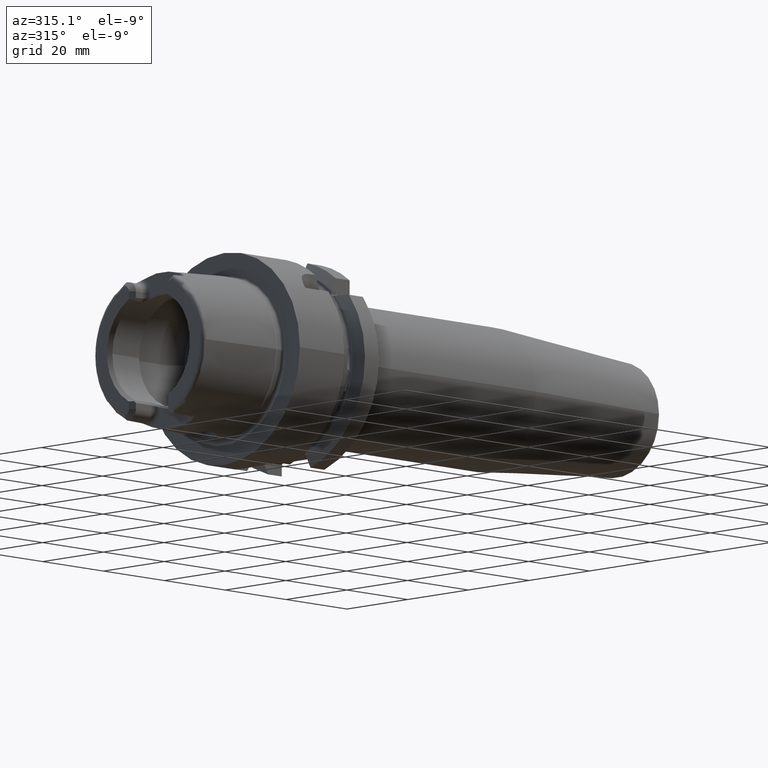
[diagram: clean part render]
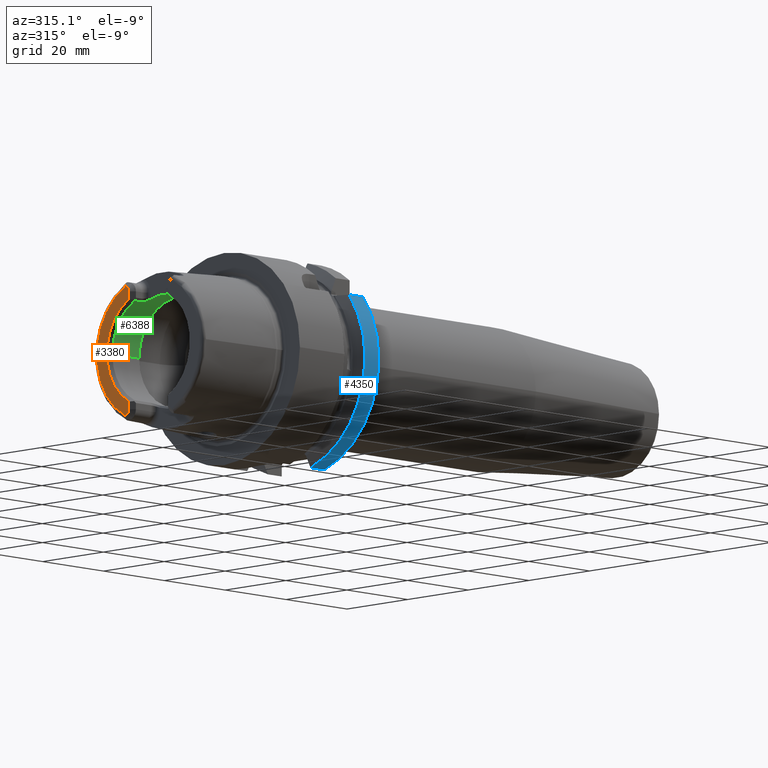
[diagram: same view with three faces highlighted in distinct colors, each labeled with its STEP entity id]
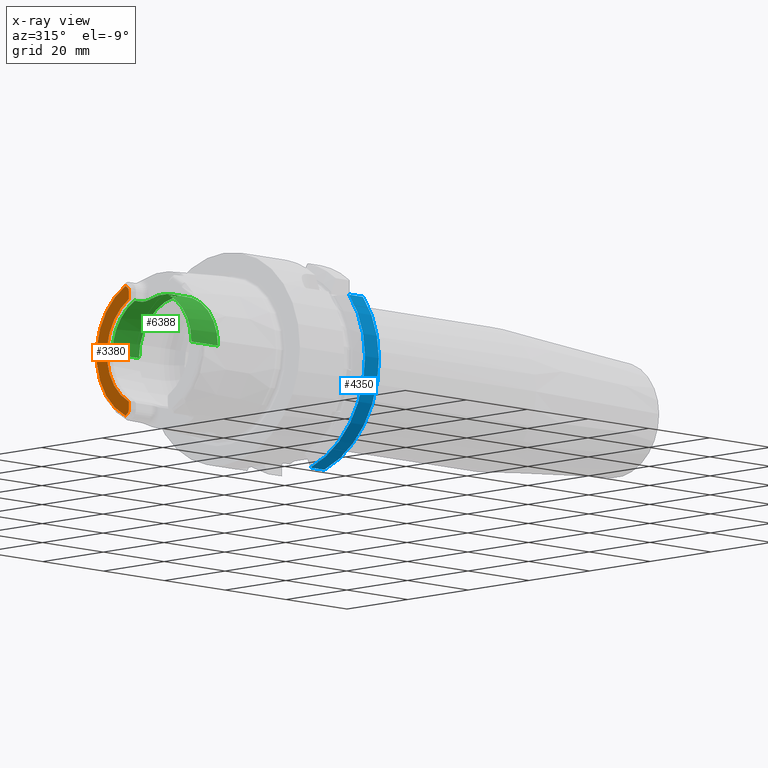
[diagram: x-ray of the same camera — body ghosted, the three highlighted faces saturated]
A machine part, auxiliary view with three faces highlighted in distinct colors.
The next image is the same camera in x-ray (body ghosted, the three faces saturated) — at least one of them is partly hidden behind the body in this view.
Their STEP definitions:

[orange] entity #3380 — the highlighted planar face has unit normal (1, 0, 0).
#86=DIRECTION('',(0.E0,0.E0,1.E0));
#87=VECTOR('',#86,1.794408024424E0);
#88=CARTESIAN_POINT('',(-2.49E1,6.42E0,-1.388E1));
#89=LINE('',#88,#87);
#90=CARTESIAN_POINT('',(-2.49E1,7.65E0,-1.388E1));
#91=DIRECTION('',(1.E0,0.E0,0.E0));
#92=DIRECTION('',(0.E0,-1.E0,0.E0));
#93=AXIS2_PLACEMENT_3D('',#90,#91,#92);
#95=DIRECTION('',(0.E0,-8.262563907023E-1,5.632942187025E-1));
#96=VECTOR('',#95,7.112027059277E-1);
#97=CARTESIAN_POINT('',(-2.49E1,7.544783891853E0,-1.529691173314E1));
#98=LINE('',#97,#96);
#99=DIRECTION('',(0.E0,-8.262563907023E-1,-5.632942187025E-1));
#100=VECTOR('',#99,7.112027059277E-1);
#101=CARTESIAN_POINT('',(-2.49E1,7.544783891853E0,1.529691173314E1));
#102=LINE('',#101,#100);
#103=CARTESIAN_POINT('',(-2.49E1,7.65E0,1.388E1));
#104=DIRECTION('',(-1.E0,0.E0,0.E0));
#105=DIRECTION('',(0.E0,-1.E0,-1.444192552358E-14));
#106=AXIS2_PLACEMENT_3D('',#103,#104,#105);
#108=DIRECTION('',(0.E0,0.E0,1.E0));
#109=VECTOR('',#108,1.794408024424E0);
#110=CARTESIAN_POINT('',(-2.49E1,6.42E0,1.208559197558E1));
#111=LINE('',#110,#109);
#143=CARTESIAN_POINT('',(-2.49E1,0.E0,0.E0));
#144=DIRECTION('',(1.E0,0.E0,0.E0));
#145=DIRECTION('',(0.E0,4.691283988580E-1,-8.831299708338E-1));
#146=AXIS2_PLACEMENT_3D('',#143,#144,#145);
#344=CARTESIAN_POINT('',(-2.49E1,0.E0,0.E0));
#345=DIRECTION('',(-1.E0,0.E0,0.E0));
#346=DIRECTION('',(0.E0,4.423444250631E-1,8.968452539962E-1));
#347=AXIS2_PLACEMENT_3D('',#344,#345,#346);
#2896=CARTESIAN_POINT('',(-2.49E1,6.42E0,1.208559197558E1));
#2897=CARTESIAN_POINT('',(-2.49E1,6.42E0,1.388E1));
#2898=VERTEX_POINT('',#2896);
#2899=VERTEX_POINT('',#2897);
#2900=CARTESIAN_POINT('',(-2.49E1,6.957148110996E0,1.489629536056E1));
#2901=VERTEX_POINT('',#2900);
#2902=CARTESIAN_POINT('',(-2.49E1,7.544783891853E0,1.529691173314E1));
#2903=VERTEX_POINT('',#2902);
#2928=CARTESIAN_POINT('',(-2.49E1,6.42E0,-1.388E1));
#2929=CARTESIAN_POINT('',(-2.49E1,6.42E0,-1.208559197558E1));
#2930=VERTEX_POINT('',#2928);
#2931=VERTEX_POINT('',#2929);
#2932=CARTESIAN_POINT('',(-2.49E1,6.957148110996E0,-1.489629536056E1));
#2933=VERTEX_POINT('',#2932);
#2934=CARTESIAN_POINT('',(-2.49E1,7.544783891853E0,-1.529691173314E1));
#2935=VERTEX_POINT('',#2934);
#3357=CARTESIAN_POINT('',(-2.49E1,0.E0,0.E0));
#3358=DIRECTION('',(1.E0,0.E0,0.E0));
#3359=DIRECTION('',(0.E0,-1.E0,0.E0));
#3360=AXIS2_PLACEMENT_3D('',#3357,#3358,#3359);
#3361=PLANE('',#3360);
#3363=ORIENTED_EDGE('',*,*,#3362,.F.);
#3365=ORIENTED_EDGE('',*,*,#3364,.T.);
#3367=ORIENTED_EDGE('',*,*,#3366,.F.);
#3369=ORIENTED_EDGE('',*,*,#3368,.F.);
#3371=ORIENTED_EDGE('',*,*,#3370,.T.);
#3373=ORIENTED_EDGE('',*,*,#3372,.F.);
#3375=ORIENTED_EDGE('',*,*,#3374,.F.);
#3377=ORIENTED_EDGE('',*,*,#3376,.F.);
#3378=EDGE_LOOP('',(#3363,#3365,#3367,#3369,#3371,#3373,#3375,#3377));
#3379=FACE_OUTER_BOUND('',#3378,.F.);
#3380=ADVANCED_FACE('',(#3379),#3361,.F.);
#94=CIRCLE('',#93,1.23E0);
#107=CIRCLE('',#106,1.23E0);
#147=CIRCLE('',#146,1.368495280957E1);
#348=CIRCLE('',#347,1.705635578153E1);
#3362=EDGE_CURVE('',#2930,#2931,#89,.T.);
#3364=EDGE_CURVE('',#2930,#2933,#94,.T.);
#3366=EDGE_CURVE('',#2935,#2933,#98,.T.);
#3368=EDGE_CURVE('',#2903,#2935,#348,.T.);
#3370=EDGE_CURVE('',#2903,#2901,#102,.T.);
#3372=EDGE_CURVE('',#2899,#2901,#107,.T.);
#3374=EDGE_CURVE('',#2898,#2899,#111,.T.);
#3376=EDGE_CURVE('',#2931,#2898,#147,.T.);

[blue] entity #4350 — the highlighted cylindrical surface (partial cylindrical patch) has radius 25 mm, axis along (1, 0, 0).
#1019=CARTESIAN_POINT('',(2.595E1,0.E0,0.E0));
#1020=DIRECTION('',(1.E0,0.E0,0.E0));
#1021=DIRECTION('',(0.E0,-7.893060243024E-1,6.14E-1));
#1022=AXIS2_PLACEMENT_3D('',#1019,#1020,#1021);
#1024=DIRECTION('',(1.E0,0.E0,0.E0));
#1025=VECTOR('',#1024,4.558067168511E0);
#1026=CARTESIAN_POINT('',(2.139193283149E1,-7.0175E0,-2.399488890889E1));
#1027=LINE('',#1026,#1025);
#1028=CARTESIAN_POINT('',(2.139193283149E1,0.E0,0.E0));
#1029=DIRECTION('',(-1.E0,0.E0,0.E0));
#1030=DIRECTION('',(0.E0,-2.807E-1,-9.597955563556E-1));
#1031=AXIS2_PLACEMENT_3D('',#1028,#1029,#1030);
#1033=DIRECTION('',(1.E0,0.E0,0.E0));
#1034=VECTOR('',#1033,4.558067168511E0);
#1035=CARTESIAN_POINT('',(2.139193283149E1,-1.973265060756E1,1.535E1));
#1036=LINE('',#1035,#1034);
#1876=CARTESIAN_POINT('',(2.139193283149E1,-7.0175E0,-2.399488890889E1));
#1949=CARTESIAN_POINT('',(2.139193283149E1,-1.973265060756E1,1.535E1));
#3004=VERTEX_POINT('',#1876);
#3051=VERTEX_POINT('',#1949);
#3151=CARTESIAN_POINT('',(2.595E1,-1.973265060756E1,1.535E1));
#3152=VERTEX_POINT('',#3151);
#3193=CARTESIAN_POINT('',(2.595E1,-7.0175E0,-2.399488890889E1));
#3194=VERTEX_POINT('',#3193);
#4335=CARTESIAN_POINT('',(-2.74425E1,0.E0,0.E0));
#4336=DIRECTION('',(1.E0,0.E0,0.E0));
#4337=DIRECTION('',(0.E0,-1.E0,0.E0));
#4338=AXIS2_PLACEMENT_3D('',#4335,#4336,#4337);
#4339=CYLINDRICAL_SURFACE('',#4338,2.5E1);
#4341=ORIENTED_EDGE('',*,*,#4340,.T.);
#4343=ORIENTED_EDGE('',*,*,#4342,.F.);
#4345=ORIENTED_EDGE('',*,*,#4344,.T.);
#4347=ORIENTED_EDGE('',*,*,#4346,.T.);
#4348=EDGE_LOOP('',(#4341,#4343,#4345,#4347));
#4349=FACE_OUTER_BOUND('',#4348,.F.);
#4350=ADVANCED_FACE('',(#4349),#4339,.T.);
#1023=CIRCLE('',#1022,2.5E1);
#1032=CIRCLE('',#1031,2.5E1);
#4340=EDGE_CURVE('',#3152,#3194,#1023,.T.);
#4342=EDGE_CURVE('',#3004,#3194,#1027,.T.);
#4344=EDGE_CURVE('',#3004,#3051,#1032,.T.);
#4346=EDGE_CURVE('',#3051,#3152,#1036,.T.);

[green] entity #6388 — the highlighted cylindrical surface (partial cylindrical patch) has radius 13.021 mm, axis along (1, 0, 0).
#159=CARTESIAN_POINT('',(-2.375E1,0.E0,0.E0));
#160=DIRECTION('',(1.E0,0.E0,0.E0));
#161=DIRECTION('',(0.E0,1.E0,0.E0));
#162=AXIS2_PLACEMENT_3D('',#159,#160,#161);
#191=CARTESIAN_POINT('',(-2.375E1,0.E0,0.E0));
#192=DIRECTION('',(1.E0,0.E0,0.E0));
#193=DIRECTION('',(0.E0,-4.349817201113E-1,9.004392834439E-1));
#194=AXIS2_PLACEMENT_3D('',#191,#192,#193);
#505=DIRECTION('',(-1.E0,0.E0,0.E0));
#506=VECTOR('',#505,8.766098951869E0);
#507=CARTESIAN_POINT('',(-1.498390104813E1,1.3021E1,0.E0));
#508=LINE('',#507,#506);
#514=DIRECTION('',(-1.E0,0.E0,0.E0));
#515=VECTOR('',#514,8.766098951869E0);
#516=CARTESIAN_POINT('',(-1.498390104813E1,-1.3021E1,0.E0));
#517=LINE('',#516,#515);
#2583=DIRECTION('',(1.E0,0.E0,0.E0));
#2584=VECTOR('',#2583,2.05E0);
#2585=CARTESIAN_POINT('',(-2.375E1,5.663896977569E0,1.172461990972E1));
#2586=LINE('',#2585,#2584);
#2587=CARTESIAN_POINT('',(-2.001132486541E1,3.87E0,1.243259992922E1));
#2588=CARTESIAN_POINT('',(-2.000894931913E1,3.948091654476E0,1.240829168279E1));
#2589=CARTESIAN_POINT('',(-2.001441309205E1,4.102870364683E0,1.235850704973E1));
#2590=CARTESIAN_POINT('',(-2.005340937126E1,4.332575060022E0,1.227984117765E1));
#2591=CARTESIAN_POINT('',(-2.012180096637E1,4.554379111810E0,1.219925586913E1));
#2592=CARTESIAN_POINT('',(-2.021759596237E1,4.764243794041E0,1.211875654714E1));
#2593=CARTESIAN_POINT('',(-2.033971110869E1,4.958984425978E0,1.204028059499E1));
#2594=CARTESIAN_POINT('',(-2.048429552224E1,5.134450973300E0,1.196639092679E1));
#2595=CARTESIAN_POINT('',(-2.064814688581E1,5.287549372907E0,1.189942311510E1));
#2596=CARTESIAN_POINT('',(-2.082965354262E1,5.418141852277E0,1.184043301133E1));
#2597=CARTESIAN_POINT('',(-2.102911024602E1,5.524630321580E0,1.179103046127E1));
#2598=CARTESIAN_POINT('',(-2.124372880594E1,5.603842524286E0,1.175351168471E1));
#2599=CARTESIAN_POINT('',(-2.146977527645E1,5.652930353736E0,1.172992742962E1));
#2600=CARTESIAN_POINT('',(-2.162259884466E1,5.663896977569E0,1.172461990972E1));
#2601=CARTESIAN_POINT('',(-2.17E1,5.663896977569E0,1.172461990972E1));
#2603=CARTESIAN_POINT('',(-2.001132486541E1,-3.87E0,1.243259992922E1));
#2604=CARTESIAN_POINT('',(-2.001132486541E1,-3.369759291875E0,
1.258831406395E1));
#2605=CARTESIAN_POINT('',(-2.001132486543E1,-2.350461057242E0,
1.283928497214E1));
#2606=CARTESIAN_POINT('',(-2.001132486542E1,-7.873060254893E-1,
1.302889312722E1));
#2607=CARTESIAN_POINT('',(-2.001132486542E1,7.873060254895E-1,
1.302889312722E1));
#2608=CARTESIAN_POINT('',(-2.001132486543E1,2.350461057241E0,1.283928497214E1));
#2609=CARTESIAN_POINT('',(-2.001132486541E1,3.369759291877E0,1.258831406395E1));
#2610=CARTESIAN_POINT('',(-2.001132486541E1,3.87E0,1.243259992922E1));
#2612=CARTESIAN_POINT('',(-2.17E1,-5.663896977569E0,1.172461990972E1));
#2613=CARTESIAN_POINT('',(-2.162253385205E1,-5.663896977569E0,
1.172461990972E1));
#2614=CARTESIAN_POINT('',(-2.146960965794E1,-5.652887713534E0,
1.172994778184E1));
#2615=CARTESIAN_POINT('',(-2.124404762981E1,-5.603940373138E0,
1.175346518954E1));
#2616=CARTESIAN_POINT('',(-2.102890617342E1,-5.524545608259E0,
1.179107033680E1));
#2617=CARTESIAN_POINT('',(-2.083013782468E1,-5.418376947730E0,
1.184032277023E1));
#2618=CARTESIAN_POINT('',(-2.064964741780E1,-5.288706180038E0,
1.189890407446E1));
#2619=CARTESIAN_POINT('',(-2.048651365017E1,-5.136729908551E0,
1.196540626531E1));
#2620=CARTESIAN_POINT('',(-2.034224734480E1,-4.962438291891E0,
1.203885194320E1));
#2621=CARTESIAN_POINT('',(-2.021976173003E1,-4.768262064128E0,
1.211717470493E1));
#2622=CARTESIAN_POINT('',(-2.012314189077E1,-4.558070073865E0,
1.219788504272E1));
#2623=CARTESIAN_POINT('',(-2.005382652775E1,-4.334631930508E0,
1.227912648143E1));
#2624=CARTESIAN_POINT('',(-2.001445401734E1,-4.103717960171E0,
1.235823255338E1));
#2625=CARTESIAN_POINT('',(-2.000894190168E1,-3.948335489392E0,
1.240821578224E1));
#2626=CARTESIAN_POINT('',(-2.001132486541E1,-3.87E0,1.243259992922E1));
#2628=DIRECTION('',(1.E0,0.E0,0.E0));
#2629=VECTOR('',#2628,2.05E0);
#2630=CARTESIAN_POINT('',(-2.375E1,-5.663896977569E0,1.172461990972E1));
#2631=LINE('',#2630,#2629);
#2632=CARTESIAN_POINT('',(-1.498390104813E1,0.E0,0.E0));
#2633=DIRECTION('',(1.E0,0.E0,0.E0));
#2634=DIRECTION('',(0.E0,1.E0,0.E0));
#2635=AXIS2_PLACEMENT_3D('',#2632,#2633,#2634);
#2876=CARTESIAN_POINT('',(-2.17E1,5.663896977569E0,1.172461990972E1));
#2877=VERTEX_POINT('',#2876);
#2878=CARTESIAN_POINT('',(-2.001132486541E1,3.87E0,1.243259992922E1));
#2879=VERTEX_POINT('',#2878);
#2880=CARTESIAN_POINT('',(-2.17E1,-5.663896977569E0,1.172461990972E1));
#2881=VERTEX_POINT('',#2880);
#2882=CARTESIAN_POINT('',(-2.001132486541E1,-3.87E0,1.243259992922E1));
#2883=VERTEX_POINT('',#2882);
#3163=CARTESIAN_POINT('',(-1.498390104813E1,1.3021E1,0.E0));
#3164=VERTEX_POINT('',#3163);
#3165=CARTESIAN_POINT('',(-2.375E1,1.3021E1,0.E0));
#3166=VERTEX_POINT('',#3165);
#3175=CARTESIAN_POINT('',(-1.498390104813E1,-1.3021E1,0.E0));
#3176=VERTEX_POINT('',#3175);
#3177=CARTESIAN_POINT('',(-2.375E1,-1.3021E1,0.E0));
#3178=VERTEX_POINT('',#3177);
#3179=CARTESIAN_POINT('',(-2.375E1,5.663896977569E0,1.172461990972E1));
#3180=VERTEX_POINT('',#3179);
#3181=CARTESIAN_POINT('',(-2.375E1,-5.663896977569E0,1.172461990972E1));
#3182=VERTEX_POINT('',#3181);
#6367=CARTESIAN_POINT('',(-2.66425E1,0.E0,0.E0));
#6368=DIRECTION('',(1.E0,0.E0,0.E0));
#6369=DIRECTION('',(0.E0,-1.E0,0.E0));
#6370=AXIS2_PLACEMENT_3D('',#6367,#6368,#6369);
#6371=CYLINDRICAL_SURFACE('',#6370,1.3021E1);
#6372=ORIENTED_EDGE('',*,*,#3487,.T.);
#6374=ORIENTED_EDGE('',*,*,#6373,.F.);
#6376=ORIENTED_EDGE('',*,*,#6375,.F.);
#6378=ORIENTED_EDGE('',*,*,#6377,.F.);
#6380=ORIENTED_EDGE('',*,*,#6379,.F.);
#6381=ORIENTED_EDGE('',*,*,#3452,.T.);
#6382=ORIENTED_EDGE('',*,*,#3713,.F.);
#6383=ORIENTED_EDGE('',*,*,#6347,.F.);
#6384=ORIENTED_EDGE('',*,*,#3709,.T.);
#6385=ORIENTED_EDGE('',*,*,#3432,.T.);
#6386=EDGE_LOOP('',(#6372,#6374,#6376,#6378,#6380,#6381,#6382,#6383,#6384,
#6385));
#6387=FACE_OUTER_BOUND('',#6386,.F.);
#6388=ADVANCED_FACE('',(#6387),#6371,.F.);
#163=CIRCLE('',#162,1.3021E1);
#195=CIRCLE('',#194,1.3021E1);
#2602=B_SPLINE_CURVE_WITH_KNOTS('',3,(#2587,#2588,#2589,#2590,#2591,#2592,#2593,
#2594,#2595,#2596,#2597,#2598,#2599,#2600,#2601),.UNSPECIFIED.,.F.,.F.,(4,1,1,1,
1,1,1,1,1,1,1,1,4),(0.E0,8.333333333333E-2,1.666666666667E-1,2.5E-1,
3.333333333333E-1,4.166666666667E-1,5.E-1,5.833333333333E-1,6.666666666667E-1,
7.5E-1,8.333333333333E-1,9.166666666667E-1,1.E0),.UNSPECIFIED.);
#2611=B_SPLINE_CURVE_WITH_KNOTS('',3,(#2603,#2604,#2605,#2606,#2607,#2608,#2609,
#2610),.UNSPECIFIED.,.F.,.F.,(4,1,1,1,1,4),(0.E0,2.E-1,4.E-1,6.E-1,8.E-1,1.E0),
.UNSPECIFIED.);
#2627=B_SPLINE_CURVE_WITH_KNOTS('',3,(#2612,#2613,#2614,#2615,#2616,#2617,#2618,
#2619,#2620,#2621,#2622,#2623,#2624,#2625,#2626),.UNSPECIFIED.,.F.,.F.,(4,1,1,1,
1,1,1,1,1,1,1,1,4),(0.E0,8.333333333333E-2,1.666666666667E-1,2.5E-1,
3.333333333333E-1,4.166666666667E-1,5.E-1,5.833333333333E-1,6.666666666667E-1,
7.5E-1,8.333333333333E-1,9.166666666667E-1,1.E0),.UNSPECIFIED.);
#2636=CIRCLE('',#2635,1.3021E1);
#3432=EDGE_CURVE('',#3166,#3180,#163,.T.);
#3452=EDGE_CURVE('',#3182,#3178,#195,.T.);
#3487=EDGE_CURVE('',#3180,#2877,#2586,.T.);
#3709=EDGE_CURVE('',#3164,#3166,#508,.T.);
#3713=EDGE_CURVE('',#3176,#3178,#517,.T.);
#6347=EDGE_CURVE('',#3164,#3176,#2636,.T.);
#6373=EDGE_CURVE('',#2879,#2877,#2602,.T.);
#6375=EDGE_CURVE('',#2883,#2879,#2611,.T.);
#6377=EDGE_CURVE('',#2881,#2883,#2627,.T.);
#6379=EDGE_CURVE('',#3182,#2881,#2631,.T.);